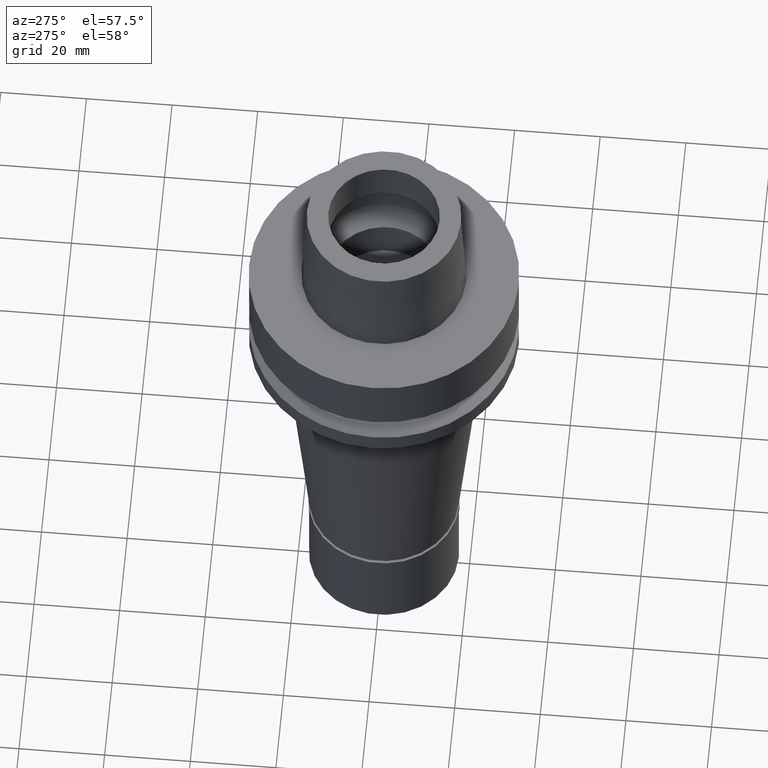
[diagram: clean part render]
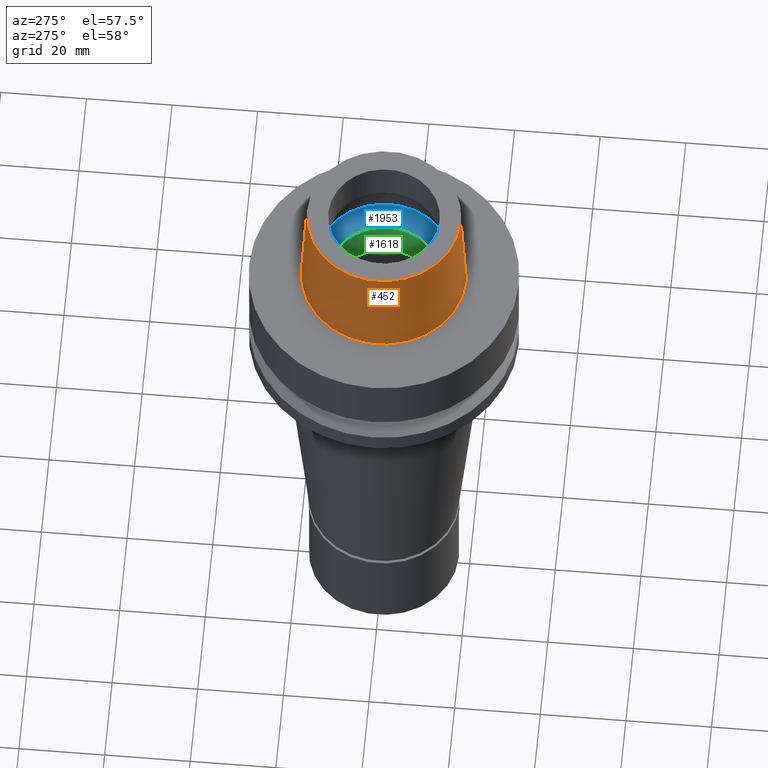
[diagram: same view with three faces highlighted in distinct colors, each labeled with its STEP entity id]
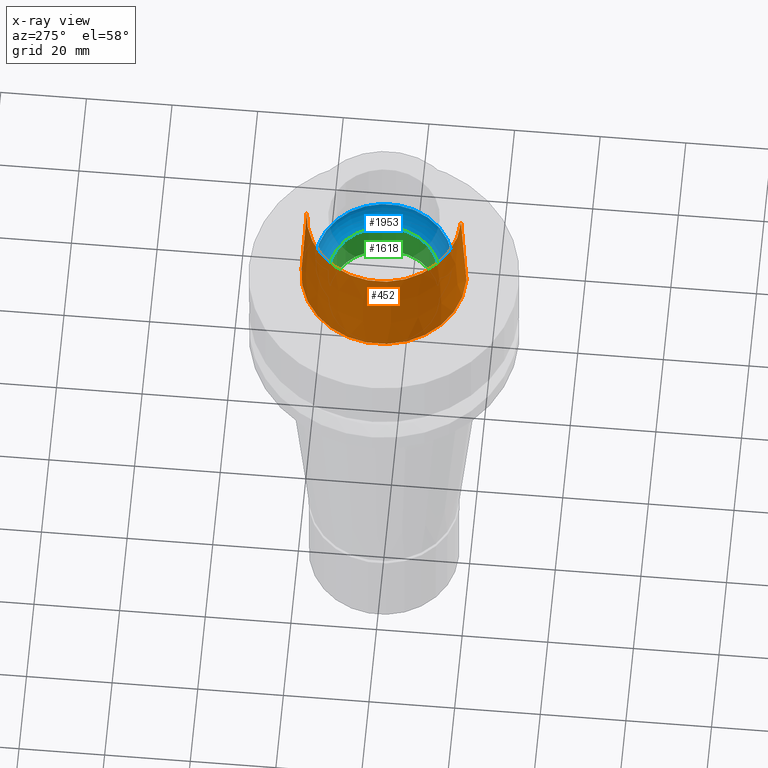
[diagram: x-ray of the same camera — body ghosted, the three highlighted faces saturated]
A machine part, auxiliary view with three faces highlighted in distinct colors.
The next image is the same camera in x-ray (body ghosted, the three faces saturated) — at least one of them is partly hidden behind the body in this view.
Their STEP definitions:

[orange] entity #452 — the highlighted conical surface has half-angle 2.862 deg.
#30 = DIRECTION ( 'NONE',  ( 0.0000000000000000000, 0.0000000000000000000, -1.000000000000000000 ) ) ;
#352 = CARTESIAN_POINT ( 'NONE',  ( 0.0000000000000000000, 0.0000000000000000000, 5.115907697473000027E-13 ) ) ;
#452 = ADVANCED_FACE ( 'NONE', ( #2389 ), #591, .T. ) ;
#464 = VERTEX_POINT ( 'NONE', #2308 ) ;
#492 = DIRECTION ( 'NONE',  ( 0.0000000000000000000, -1.000000000000000000, 0.0000000000000000000 ) ) ;
#501 = EDGE_CURVE ( 'NONE', #2710, #464, #1934, .T. ) ;
#591 = CONICAL_SURFACE ( 'NONE', #1375, 18.62500068580999724, 0.04995830450907576964 ) ;
#785 = ORIENTED_EDGE ( 'NONE', *, *, #501, .T. ) ;
#839 = DIRECTION ( 'NONE',  ( 0.0000000000000000000, -1.000000000000000000, 0.0000000000000000000 ) ) ;
#951 = VERTEX_POINT ( 'NONE', #1862 ) ;
#1027 = CARTESIAN_POINT ( 'NONE',  ( 0.0000000000000000000, 0.0000000000000000000, 12.50000000000000000 ) ) ;
#1136 = EDGE_CURVE ( 'NONE', #2573, #464, #2159, .T. ) ;
#1184 = CIRCLE ( 'NONE', #2691, 18.00000182882000033 ) ;
#1267 = DIRECTION ( 'NONE',  ( 0.0000000000000000000, 0.0000000000000000000, -1.000000000000000000 ) ) ;
#1373 = VECTOR ( 'NONE', #2247, 999.9999999999998863 ) ;
#1375 = AXIS2_PLACEMENT_3D ( 'NONE', #1027, #1267, #839 ) ;
#1425 = DIRECTION ( 'NONE',  ( 0.0000000000000000000, 0.0000000000000000000, 1.000000000000000000 ) ) ;
#1643 = EDGE_CURVE ( 'NONE', #2573, #951, #1184, .T. ) ;
#1677 = ORIENTED_EDGE ( 'NONE', *, *, #1136, .F. ) ;
#1715 = CARTESIAN_POINT ( 'NONE',  ( 0.0000000000000000000, -18.00000182882000033, 25.00000000000000000 ) ) ;
#1816 = LINE ( 'NONE', #2532, #1373 ) ;
#1835 = EDGE_LOOP ( 'NONE', ( #785, #1677, #2658, #1931 ) ) ;
#1862 = CARTESIAN_POINT ( 'NONE',  ( 0.0000000000000000000, 18.00000182882000033, 25.00000000000000000 ) ) ;
#1886 = AXIS2_PLACEMENT_3D ( 'NONE', #352, #1425, #2278 ) ;
#1931 = ORIENTED_EDGE ( 'NONE', *, *, #2763, .T. ) ;
#1934 = CIRCLE ( 'NONE', #1886, 19.24999954280000125 ) ;
#2012 = CARTESIAN_POINT ( 'NONE',  ( 0.0000000000000000000, 0.0000000000000000000, 25.00000000000000000 ) ) ;
#2159 = LINE ( 'NONE', #1715, #2503 ) ;
#2234 = CARTESIAN_POINT ( 'NONE',  ( 0.0000000000000000000, 19.24999954280000125, 3.410605131648000255E-13 ) ) ;
#2247 = DIRECTION ( 'NONE',  ( 0.0000000000000000000, 0.04993752584486958745, -0.9987523434327917338 ) ) ;
#2278 = DIRECTION ( 'NONE',  ( 0.0000000000000000000, 1.000000000000000000, 0.0000000000000000000 ) ) ;
#2308 = CARTESIAN_POINT ( 'NONE',  ( 0.0000000000000000000, -19.24999954280000125, 3.410605131648000255E-13 ) ) ;
#2389 = FACE_OUTER_BOUND ( 'NONE', #1835, .T. ) ;
#2503 = VECTOR ( 'NONE', #2601, 999.9999999999998863 ) ;
#2532 = CARTESIAN_POINT ( 'NONE',  ( 0.0000000000000000000, 18.00000182882000033, 25.00000000000000000 ) ) ;
#2573 = VERTEX_POINT ( 'NONE', #2580 ) ;
#2580 = CARTESIAN_POINT ( 'NONE',  ( 0.0000000000000000000, -18.00000182882000033, 25.00000000000000000 ) ) ;
#2601 = DIRECTION ( 'NONE',  ( 0.0000000000000000000, -0.04993752584486958745, -0.9987523434327917338 ) ) ;
#2658 = ORIENTED_EDGE ( 'NONE', *, *, #1643, .T. ) ;
#2691 = AXIS2_PLACEMENT_3D ( 'NONE', #2012, #30, #492 ) ;
#2710 = VERTEX_POINT ( 'NONE', #2234 ) ;
#2763 = EDGE_CURVE ( 'NONE', #951, #2710, #1816, .T. ) ;

[blue] entity #1953 — the highlighted toroidal blend (fillet) surface has major radius 10 mm and minor (blend) radius 6 mm.
#120 = CARTESIAN_POINT ( 'NONE',  ( 0.0000000000000000000, 0.0000000000000000000, 5.245999999999999552 ) ) ;
#242 = VERTEX_POINT ( 'NONE', #2299 ) ;
#341 = TOROIDAL_SURFACE ( 'NONE', #1964, 10.00000000000000000, 6.000000000000000000 ) ;
#412 = VERTEX_POINT ( 'NONE', #983 ) ;
#414 = EDGE_CURVE ( 'NONE', #412, #1424, #1512, .T. ) ;
#480 = ORIENTED_EDGE ( 'NONE', *, *, #822, .F. ) ;
#481 = AXIS2_PLACEMENT_3D ( 'NONE', #1813, #905, #482 ) ;
#482 = DIRECTION ( 'NONE',  ( 0.0000000000000000000, -1.000000000000000000, 0.0000000000000000000 ) ) ;
#579 = ORIENTED_EDGE ( 'NONE', *, *, #1278, .F. ) ;
#639 = ORIENTED_EDGE ( 'NONE', *, *, #414, .T. ) ;
#758 = EDGE_CURVE ( 'NONE', #1667, #242, #2784, .T. ) ;
#822 = EDGE_CURVE ( 'NONE', #242, #1424, #1494, .T. ) ;
#830 = CARTESIAN_POINT ( 'NONE',  ( 0.0000000000000000000, 10.00000000000000000, 5.245999999999999552 ) ) ;
#897 = AXIS2_PLACEMENT_3D ( 'NONE', #1160, #937, #1574 ) ;
#905 = DIRECTION ( 'NONE',  ( 0.0000000000000000000, 0.0000000000000000000, 1.000000000000000000 ) ) ;
#937 = DIRECTION ( 'NONE',  ( 0.0000000000000000000, 0.0000000000000000000, -1.000000000000000000 ) ) ;
#983 = CARTESIAN_POINT ( 'NONE',  ( 0.0000000000000000000, -13.00000000000000000, 0.04984757729334000215 ) ) ;
#1011 = DIRECTION ( 'NONE',  ( 0.0000000000000000000, 0.0000000000000000000, 1.000000000000000000 ) ) ;
#1119 = DIRECTION ( 'NONE',  ( 1.000000000000000000, 0.0000000000000000000, 0.0000000000000000000 ) ) ;
#1149 = AXIS2_PLACEMENT_3D ( 'NONE', #1201, #2306, #1662 ) ;
#1160 = CARTESIAN_POINT ( 'NONE',  ( 0.0000000000000000000, 0.0000000000000000000, 5.245999999999999552 ) ) ;
#1180 = EDGE_LOOP ( 'NONE', ( #579, #639, #480, #2748 ) ) ;
#1201 = CARTESIAN_POINT ( 'NONE',  ( 0.0000000000000000000, -10.00000000000000000, 5.245999999999999552 ) ) ;
#1211 = FACE_OUTER_BOUND ( 'NONE', #1180, .T. ) ;
#1278 = EDGE_CURVE ( 'NONE', #412, #1667, #2415, .T. ) ;
#1424 = VERTEX_POINT ( 'NONE', #1852 ) ;
#1494 = CIRCLE ( 'NONE', #897, 16.00000000000000000 ) ;
#1512 = CIRCLE ( 'NONE', #1149, 6.000000000000000000 ) ;
#1574 = DIRECTION ( 'NONE',  ( 0.0000000000000000000, 1.000000000000000000, 0.0000000000000000000 ) ) ;
#1662 = DIRECTION ( 'NONE',  ( 0.0000000000000000000, -0.5000000000000169864, -0.8660254037844289376 ) ) ;
#1667 = VERTEX_POINT ( 'NONE', #2578 ) ;
#1673 = DIRECTION ( 'NONE',  ( 0.0000000000000000000, 1.000000000000000000, 0.0000000000000000000 ) ) ;
#1781 = AXIS2_PLACEMENT_3D ( 'NONE', #830, #1119, #2621 ) ;
#1813 = CARTESIAN_POINT ( 'NONE',  ( 0.0000000000000000000, 0.0000000000000000000, 0.04984757729334000215 ) ) ;
#1852 = CARTESIAN_POINT ( 'NONE',  ( 0.0000000000000000000, -16.00000000000000000, 5.245999999999999552 ) ) ;
#1953 = ADVANCED_FACE ( 'NONE', ( #1211 ), #341, .F. ) ;
#1964 = AXIS2_PLACEMENT_3D ( 'NONE', #120, #1011, #1673 ) ;
#2299 = CARTESIAN_POINT ( 'NONE',  ( 0.0000000000000000000, 16.00000000000000000, 5.245999999999999552 ) ) ;
#2306 = DIRECTION ( 'NONE',  ( -1.000000000000000000, 0.0000000000000000000, 0.0000000000000000000 ) ) ;
#2415 = CIRCLE ( 'NONE', #481, 13.00000000000000000 ) ;
#2578 = CARTESIAN_POINT ( 'NONE',  ( 0.0000000000000000000, 13.00000000000000000, 0.04984757729326000364 ) ) ;
#2621 = DIRECTION ( 'NONE',  ( 0.0000000000000000000, 0.5000000000000169864, -0.8660254037844289376 ) ) ;
#2748 = ORIENTED_EDGE ( 'NONE', *, *, #758, .F. ) ;
#2784 = CIRCLE ( 'NONE', #1781, 6.000000000000000000 ) ;

[green] entity #1618 — the highlighted cylindrical surface (partial cylindrical patch) has radius 13 mm, axis along (0, 0, 1).
#37 = CARTESIAN_POINT ( 'NONE',  ( 0.0000000000000000000, -13.00000000000000000, 1.278976924367999843E-13 ) ) ;
#115 = LINE ( 'NONE', #2785, #1650 ) ;
#205 = CARTESIAN_POINT ( 'NONE',  ( 0.0000000000000000000, -13.00000000000000000, -9.950000000000001066 ) ) ;
#262 = CIRCLE ( 'NONE', #1015, 13.00000000000000000 ) ;
#305 = ORIENTED_EDGE ( 'NONE', *, *, #2472, .F. ) ;
#333 = DIRECTION ( 'NONE',  ( 0.0000000000000000000, 1.000000000000000000, 0.0000000000000000000 ) ) ;
#474 = CYLINDRICAL_SURFACE ( 'NONE', #1403, 13.00000000000000000 ) ;
#475 = EDGE_CURVE ( 'NONE', #1582, #1752, #262, .T. ) ;
#478 = VECTOR ( 'NONE', #874, 1000.000000000000000 ) ;
#534 = FACE_OUTER_BOUND ( 'NONE', #1900, .T. ) ;
#782 = CARTESIAN_POINT ( 'NONE',  ( 0.0000000000000000000, 0.0000000000000000000, 1.278976924367999843E-13 ) ) ;
#784 = VERTEX_POINT ( 'NONE', #37 ) ;
#874 = DIRECTION ( 'NONE',  ( 0.0000000000000000000, 0.0000000000000000000, 1.000000000000000000 ) ) ;
#875 = EDGE_CURVE ( 'NONE', #1752, #784, #2459, .T. ) ;
#899 = CARTESIAN_POINT ( 'NONE',  ( 0.0000000000000000000, 13.00000000000000000, 1.278976924367999843E-13 ) ) ;
#915 = DIRECTION ( 'NONE',  ( 0.0000000000000000000, 0.0000000000000000000, 1.000000000000000000 ) ) ;
#952 = AXIS2_PLACEMENT_3D ( 'NONE', #782, #1608, #2037 ) ;
#1015 = AXIS2_PLACEMENT_3D ( 'NONE', #1029, #1891, #333 ) ;
#1029 = CARTESIAN_POINT ( 'NONE',  ( 0.0000000000000000000, 0.0000000000000000000, -9.950000000000001066 ) ) ;
#1047 = CIRCLE ( 'NONE', #952, 13.00000000000000000 ) ;
#1065 = ORIENTED_EDGE ( 'NONE', *, *, #1751, .T. ) ;
#1122 = CARTESIAN_POINT ( 'NONE',  ( 0.0000000000000000000, 13.00000000000000000, -9.950000000000001066 ) ) ;
#1272 = ORIENTED_EDGE ( 'NONE', *, *, #875, .T. ) ;
#1403 = AXIS2_PLACEMENT_3D ( 'NONE', #2476, #915, #2222 ) ;
#1582 = VERTEX_POINT ( 'NONE', #1122 ) ;
#1608 = DIRECTION ( 'NONE',  ( 0.0000000000000000000, 0.0000000000000000000, 1.000000000000000000 ) ) ;
#1618 = ADVANCED_FACE ( 'NONE', ( #534 ), #474, .F. ) ;
#1650 = VECTOR ( 'NONE', #2567, 1000.000000000000000 ) ;
#1751 = EDGE_CURVE ( 'NONE', #784, #2089, #1047, .T. ) ;
#1752 = VERTEX_POINT ( 'NONE', #2217 ) ;
#1890 = ORIENTED_EDGE ( 'NONE', *, *, #475, .T. ) ;
#1891 = DIRECTION ( 'NONE',  ( 0.0000000000000000000, 0.0000000000000000000, -1.000000000000000000 ) ) ;
#1900 = EDGE_LOOP ( 'NONE', ( #1890, #1272, #1065, #305 ) ) ;
#2037 = DIRECTION ( 'NONE',  ( 0.0000000000000000000, -1.000000000000000000, 0.0000000000000000000 ) ) ;
#2089 = VERTEX_POINT ( 'NONE', #899 ) ;
#2217 = CARTESIAN_POINT ( 'NONE',  ( 0.0000000000000000000, -13.00000000000000000, -9.950000000000001066 ) ) ;
#2222 = DIRECTION ( 'NONE',  ( 0.0000000000000000000, 1.000000000000000000, 0.0000000000000000000 ) ) ;
#2459 = LINE ( 'NONE', #205, #478 ) ;
#2472 = EDGE_CURVE ( 'NONE', #1582, #2089, #115, .T. ) ;
#2476 = CARTESIAN_POINT ( 'NONE',  ( 0.0000000000000000000, 0.0000000000000000000, -120.2150000000000034 ) ) ;
#2567 = DIRECTION ( 'NONE',  ( 0.0000000000000000000, 0.0000000000000000000, 1.000000000000000000 ) ) ;
#2785 = CARTESIAN_POINT ( 'NONE',  ( 0.0000000000000000000, 13.00000000000000000, -9.950000000000001066 ) ) ;